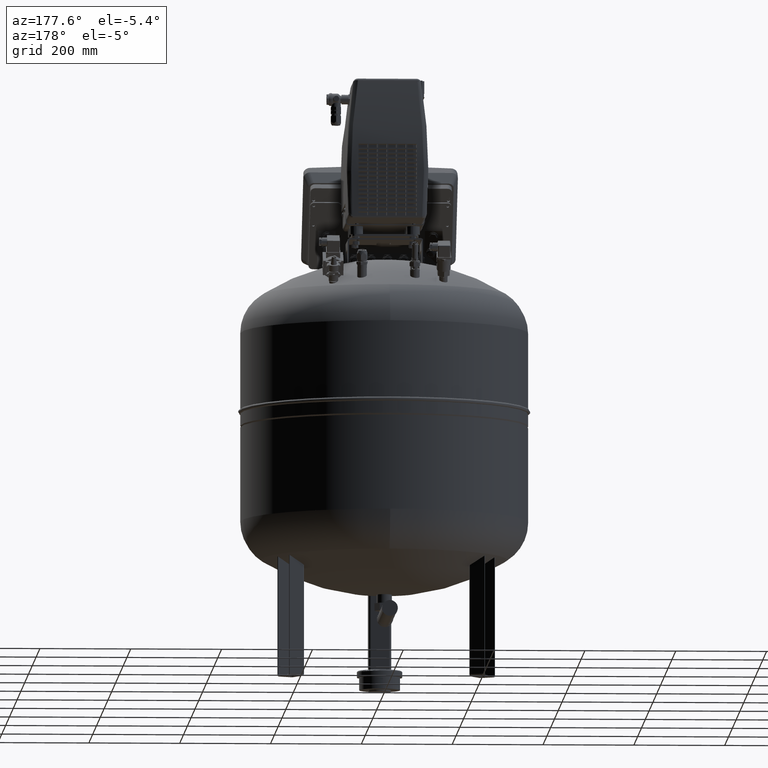
[diagram: clean part render]
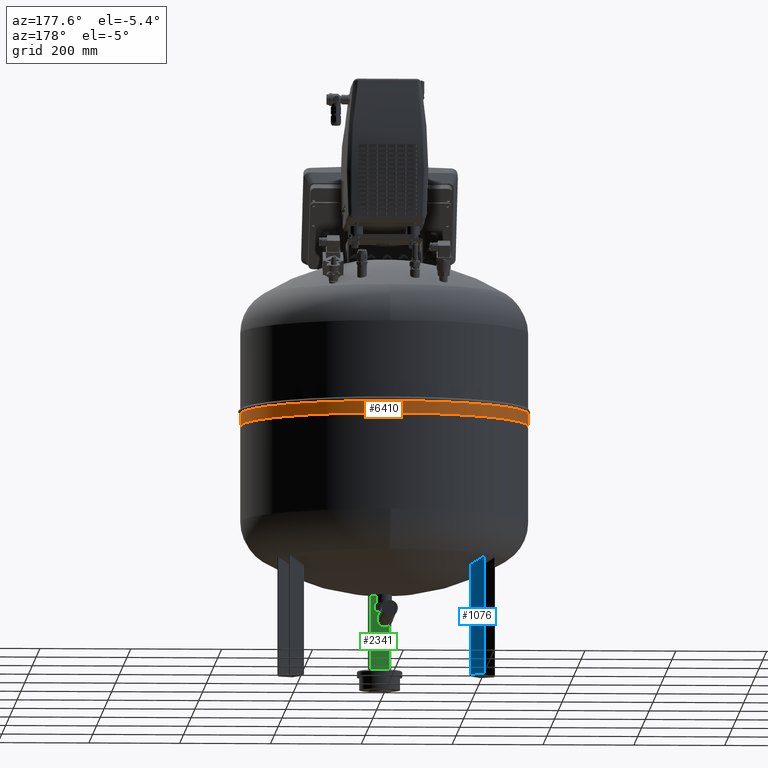
[diagram: same view with three faces highlighted in distinct colors, each labeled with its STEP entity id]
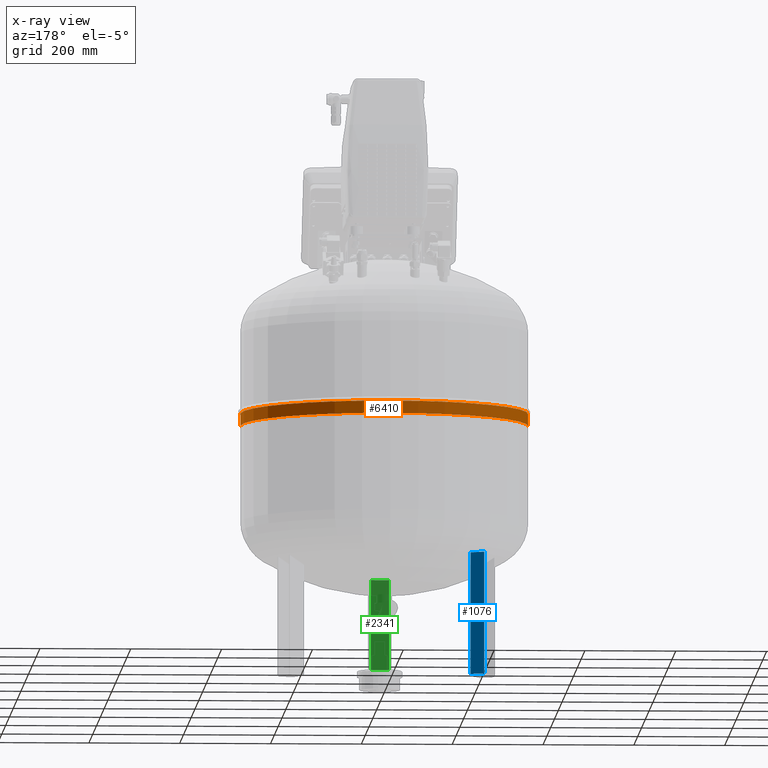
[diagram: x-ray of the same camera — body ghosted, the three highlighted faces saturated]
A machine part, auxiliary view with three faces highlighted in distinct colors.
The next image is the same camera in x-ray (body ghosted, the three faces saturated) — at least one of them is partly hidden behind the body in this view.
Their STEP definitions:

[orange] entity #6410 — the highlighted cylindrical surface (partial cylindrical patch) has radius 317 mm, axis along (-0, 0, -1).
#6208=CARTESIAN_POINT('',(-316.99999999999983,0.0,564.5));
#6209=VERTEX_POINT('',#6208);
#6225=CARTESIAN_POINT('',(316.99999999999989,-3.882002E-014,564.49999999999989));
#6226=VERTEX_POINT('',#6225);
#6248=CARTESIAN_POINT('',(-316.99999999999989,0.0,591.60000000000002));
#6249=VERTEX_POINT('',#6248);
#6250=CARTESIAN_POINT('',(-316.99999999999989,0.0,564.5));
#6251=DIRECTION('',(0.0,0.0,1.0));
#6252=VECTOR('',#6251,27.100000000000023);
#6253=LINE('',#6250,#6252);
#6254=EDGE_CURVE('',#6209,#6249,#6253,.T.);
#6257=CARTESIAN_POINT('',(316.99999999999989,-3.882002E-014,591.5999999999998));
#6258=VERTEX_POINT('',#6257);
#6259=CARTESIAN_POINT('',(316.99999999999989,-3.882002E-014,564.49999999999989));
#6260=DIRECTION('',(0.0,0.0,1.0));
#6261=VECTOR('',#6260,27.099999999999909);
#6262=LINE('',#6259,#6261);
#6263=EDGE_CURVE('',#6226,#6258,#6262,.T.);
#6383=CARTESIAN_POINT('',(6.202476E-015,0.0,591.59999999999991));
#6384=DIRECTION('',(0.0,0.0,-1.0));
#6385=DIRECTION('',(-1.0,0.0,0.0));
#6386=AXIS2_PLACEMENT_3D('',#6383,#6384,#6385);
#6387=CIRCLE('',#6386,316.99999999999989);
#6388=EDGE_CURVE('',#6249,#6258,#6387,.T.);
#6393=CARTESIAN_POINT('',(3.455955E-015,0.0,578.04999999999995));
#6394=DIRECTION('',(-2.026953E-016,0.0,-1.0));
#6395=DIRECTION('',(-1.0,0.0,0.0));
#6396=AXIS2_PLACEMENT_3D('',#6393,#6394,#6395);
#6397=CYLINDRICAL_SURFACE('',#6396,316.99999999999989);
#6398=ORIENTED_EDGE('',*,*,#6254,.T.);
#6399=ORIENTED_EDGE('',*,*,#6388,.T.);
#6400=ORIENTED_EDGE('',*,*,#6263,.F.);
#6401=CARTESIAN_POINT('',(7.094335E-016,0.0,564.5));
#6402=DIRECTION('',(0.0,0.0,-1.0));
#6403=DIRECTION('',(-1.0,0.0,0.0));
#6404=AXIS2_PLACEMENT_3D('',#6401,#6402,#6403);
#6405=CIRCLE('',#6404,316.99999999999983);
#6406=EDGE_CURVE('',#6209,#6226,#6405,.T.);
#6407=ORIENTED_EDGE('',*,*,#6406,.F.);
#6408=EDGE_LOOP('',(#6398,#6399,#6400,#6407));
#6409=FACE_OUTER_BOUND('',#6408,.T.);
#6410=ADVANCED_FACE('',(#6409),#6397,.T.);

[blue] entity #1076 — the highlighted planar face has unit normal (0.5, 0.866, -0).
#284=CARTESIAN_POINT('',(-184.52077936095978,135.40063509461103,274.0));
#285=VERTEX_POINT('',#284);
#293=CARTESIAN_POINT('',(-213.9656430896307,152.40063509461103,274.0));
#294=VERTEX_POINT('',#293);
#295=CARTESIAN_POINT('',(-213.9656430896307,152.40063509461103,274.0));
#296=DIRECTION('',(0.866025403784439,-0.5,0.0));
#297=VECTOR('',#296,34.000000000000007);
#298=LINE('',#295,#297);
#299=EDGE_CURVE('',#294,#285,#298,.T.);
#604=CARTESIAN_POINT('',(-213.9656430896307,152.40063509461103,4.999999999999996));
#605=VERTEX_POINT('',#604);
#606=CARTESIAN_POINT('',(-213.9656430896307,152.40063509461103,5.0));
#607=DIRECTION('',(0.0,0.0,1.0));
#608=VECTOR('',#607,269.0);
#609=LINE('',#606,#608);
#610=EDGE_CURVE('',#605,#294,#609,.T.);
#951=CARTESIAN_POINT('',(-184.52077936095978,135.40063509461103,4.999999999999996));
#952=VERTEX_POINT('',#951);
#953=CARTESIAN_POINT('',(-213.9656430896307,152.40063509461103,4.999999999999996));
#954=DIRECTION('',(0.866025403784439,-0.5,0.0));
#955=VECTOR('',#954,34.000000000000007);
#956=LINE('',#953,#955);
#957=EDGE_CURVE('',#605,#952,#956,.T.);
#1054=CARTESIAN_POINT('',(-184.52077936095978,135.40063509461103,5.0));
#1055=DIRECTION('',(0.0,0.0,1.0));
#1056=VECTOR('',#1055,269.0);
#1057=LINE('',#1054,#1056);
#1058=EDGE_CURVE('',#952,#285,#1057,.T.);
#1065=CARTESIAN_POINT('',(-214.83166849341515,152.90063509461103,-4.592425E-015));
#1066=DIRECTION('',(0.5,0.866025403784439,-1.836970E-016));
#1067=DIRECTION('',(-0.866025403784439,0.5,2.039447E-032));
#1068=AXIS2_PLACEMENT_3D('',#1065,#1066,#1067);
#1069=PLANE('',#1068);
#1070=ORIENTED_EDGE('',*,*,#610,.T.);
#1071=ORIENTED_EDGE('',*,*,#299,.T.);
#1072=ORIENTED_EDGE('',*,*,#1058,.F.);
#1073=ORIENTED_EDGE('',*,*,#957,.F.);
#1074=EDGE_LOOP('',(#1070,#1071,#1072,#1073));
#1075=FACE_OUTER_BOUND('',#1074,.T.);
#1076=ADVANCED_FACE('',(#1075),#1069,.T.);

[green] entity #2341 — the highlighted planar face has unit normal (0, 1, 0).
#2020=CARTESIAN_POINT('',(-20.000000000000004,-217.5,245.24490214898094));
#2021=VERTEX_POINT('',#2020);
#2155=CARTESIAN_POINT('',(19.999999999999996,-217.5,245.24490214898094));
#2156=VERTEX_POINT('',#2155);
#2179=CARTESIAN_POINT('',(-6.193884E-014,-217.49999999999997,705.0));
#2180=DIRECTION('',(0.0,-1.0,0.0));
#2181=DIRECTION('',(0.0,0.0,-1.0));
#2182=AXIS2_PLACEMENT_3D('',#2179,#2180,#2181);
#2183=CIRCLE('',#2182,460.18990645167361);
#2184=EDGE_CURVE('',#2021,#2156,#2183,.T.);
#2298=CARTESIAN_POINT('',(-20.000000000000004,-217.5,45.999999999999979));
#2299=VERTEX_POINT('',#2298);
#2300=CARTESIAN_POINT('',(-20.000000000000004,-217.5,245.24490214898094));
#2301=DIRECTION('',(0.0,0.0,-1.0));
#2302=VECTOR('',#2301,199.24490214898097);
#2303=LINE('',#2300,#2302);
#2304=EDGE_CURVE('',#2021,#2299,#2303,.T.);
#2318=CARTESIAN_POINT('',(-25.000000000000004,-217.5,45.999999999999979));
#2319=DIRECTION('',(0.0,1.0,0.0));
#2320=DIRECTION('',(-1.0,0.0,0.0));
#2321=AXIS2_PLACEMENT_3D('',#2318,#2319,#2320);
#2322=PLANE('',#2321);
#2323=CARTESIAN_POINT('',(19.999999999999996,-217.5,45.999999999999979));
#2324=VERTEX_POINT('',#2323);
#2325=CARTESIAN_POINT('',(19.999999999999996,-217.5,45.999999999999979));
#2326=DIRECTION('',(0.0,0.0,1.0));
#2327=VECTOR('',#2326,199.24490214898097);
#2328=LINE('',#2325,#2327);
#2329=EDGE_CURVE('',#2324,#2156,#2328,.T.);
#2330=ORIENTED_EDGE('',*,*,#2329,.F.);
#2331=CARTESIAN_POINT('',(-20.000000000000004,-217.5,45.999999999999979));
#2332=DIRECTION('',(1.0,0.0,0.0));
#2333=VECTOR('',#2332,40.0);
#2334=LINE('',#2331,#2333);
#2335=EDGE_CURVE('',#2299,#2324,#2334,.T.);
#2336=ORIENTED_EDGE('',*,*,#2335,.F.);
#2337=ORIENTED_EDGE('',*,*,#2304,.F.);
#2338=ORIENTED_EDGE('',*,*,#2184,.T.);
#2339=EDGE_LOOP('',(#2330,#2336,#2337,#2338));
#2340=FACE_OUTER_BOUND('',#2339,.T.);
#2341=ADVANCED_FACE('',(#2340),#2322,.T.);